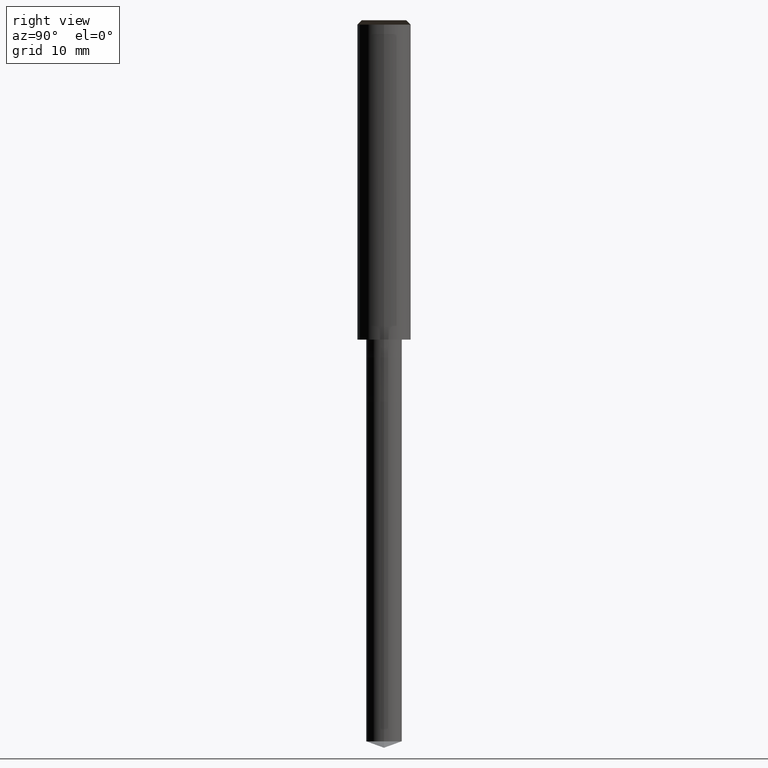
[diagram: clean part render]
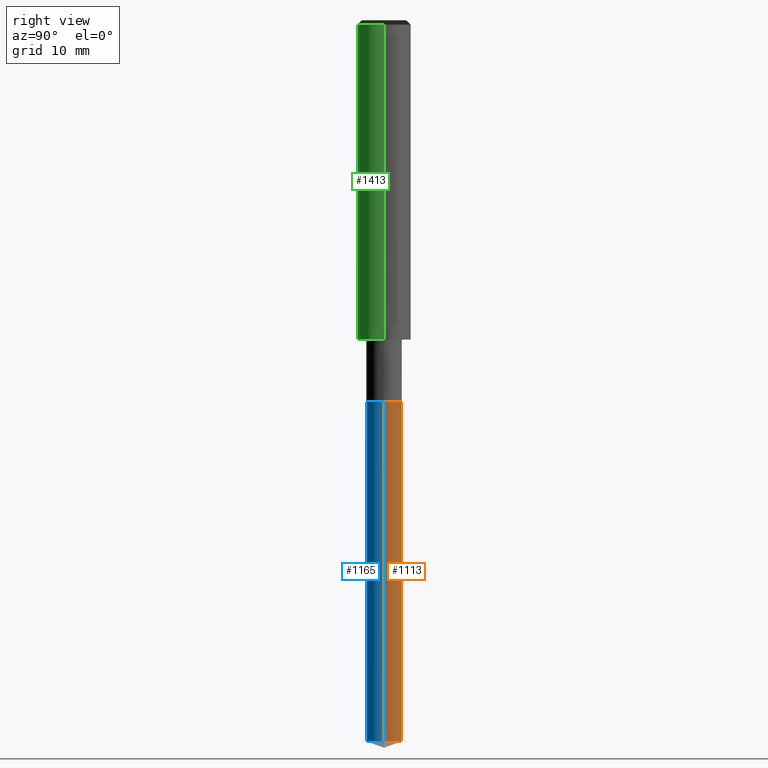
[diagram: same view with three faces highlighted in distinct colors, each labeled with its STEP entity id]
A machine part, right view with three faces highlighted in distinct colors.
Their STEP definitions:

[orange] entity #1113 — the highlighted face is a freeform B-spline surface patch.
#1015=CARTESIAN_POINT('',(2.0,0.0,-45.272059531468));
#1016=CARTESIAN_POINT('',(2.0,2.0,-45.272059531468));
#1017=CARTESIAN_POINT('',(0.0,2.0,-45.272059531468));
#1018=CARTESIAN_POINT('',(-2.0,2.0,-45.272059531468));
#1019=CARTESIAN_POINT('',(-2.0,0.0,-45.272059531468));
#1020=CARTESIAN_POINT('',(2.0,0.0,-7.0));
#1021=CARTESIAN_POINT('',(2.0,2.0,-7.0));
#1022=CARTESIAN_POINT('',(0.0,2.0,-7.0));
#1023=CARTESIAN_POINT('',(-2.0,2.0,-7.0));
#1024=CARTESIAN_POINT('',(-2.0,0.0,-7.0));
#1094=(
BOUNDED_SURFACE()
B_SPLINE_SURFACE(1,2,(
(#1015,#1016,#1017,#1018,#1019),
(#1020,#1021,#1022,#1023,#1024)
), .UNSPECIFIED.,.F.,.F.,.F.)
B_SPLINE_SURFACE_WITH_KNOTS((2,2),(3,2,3),(
0.0,1.0),(
0.0,0.5,1.0), .UNSPECIFIED.)
GEOMETRIC_REPRESENTATION_ITEM()
RATIONAL_B_SPLINE_SURFACE(((1.0,0.707106781187,1.0,0.707106781187,1.0),
(1.0,0.707106781187,1.0,0.707106781187,1.0)
))
REPRESENTATION_ITEM('')
SURFACE()
);
#1095=(
BOUNDED_CURVE()
B_SPLINE_CURVE(2,(#1019,#1018,#1017,#1016,#1015),.UNSPECIFIED.,.F.,.F.)
B_SPLINE_CURVE_WITH_KNOTS((3,2,3),
(0.0,0.5,1.0),.UNSPECIFIED.)
CURVE()
GEOMETRIC_REPRESENTATION_ITEM()
RATIONAL_B_SPLINE_CURVE((1.0,0.707106781187,1.0,0.707106781187,1.0))
REPRESENTATION_ITEM('')
);
#1096=(
BOUNDED_CURVE()
B_SPLINE_CURVE(1,(#1015,#1020),.UNSPECIFIED.,.F.,.F.)
B_SPLINE_CURVE_WITH_KNOTS((2,2),
(0.0,1.0),.UNSPECIFIED.)
CURVE()
GEOMETRIC_REPRESENTATION_ITEM()
RATIONAL_B_SPLINE_CURVE((1.0,1.0))
REPRESENTATION_ITEM('')
);
#1097=(
BOUNDED_CURVE()
B_SPLINE_CURVE(2,(#1020,#1021,#1022,#1023,#1024),.UNSPECIFIED.,.F.,.F.)
B_SPLINE_CURVE_WITH_KNOTS((3,2,3),
(0.0,0.5,1.0),.UNSPECIFIED.)
CURVE()
GEOMETRIC_REPRESENTATION_ITEM()
RATIONAL_B_SPLINE_CURVE((1.0,0.707106781187,1.0,0.707106781187,1.0))
REPRESENTATION_ITEM('')
);
#1098=(
BOUNDED_CURVE()
B_SPLINE_CURVE(1,(#1024,#1019),.UNSPECIFIED.,.F.,.F.)
B_SPLINE_CURVE_WITH_KNOTS((2,2),
(0.0,1.0),.UNSPECIFIED.)
CURVE()
GEOMETRIC_REPRESENTATION_ITEM()
RATIONAL_B_SPLINE_CURVE((1.0,1.0))
REPRESENTATION_ITEM('')
);
#1099=VERTEX_POINT('',#1015);
#1100=VERTEX_POINT('',#1019);
#1101=VERTEX_POINT('',#1020);
#1102=VERTEX_POINT('',#1024);
#1103=EDGE_CURVE('',#1100,#1099,#1095,.T.);
#1104=EDGE_CURVE('',#1099,#1101,#1096,.T.);
#1105=EDGE_CURVE('',#1101,#1102,#1097,.T.);
#1106=EDGE_CURVE('',#1102,#1100,#1098,.T.);
#1107=ORIENTED_EDGE('',*,*,#1103,.T.);
#1108=ORIENTED_EDGE('',*,*,#1104,.T.);
#1109=ORIENTED_EDGE('',*,*,#1105,.T.);
#1110=ORIENTED_EDGE('',*,*,#1106,.T.);
#1111=EDGE_LOOP('',(#1107,#1108,#1109,#1110));
#1112=FACE_OUTER_BOUND('',#1111,.T.);
#1113=ADVANCED_FACE('',(#1112),#1094,.T.);

[blue] entity #1165 — the highlighted face is a freeform B-spline surface patch.
#1015=CARTESIAN_POINT('',(2.0,0.0,-45.272059531468));
#1019=CARTESIAN_POINT('',(-2.0,0.0,-45.272059531468));
#1020=CARTESIAN_POINT('',(2.0,0.0,-7.0));
#1024=CARTESIAN_POINT('',(-2.0,0.0,-7.0));
#1026=CARTESIAN_POINT('',(-2.0,-2.0,-45.272059531468));
#1027=CARTESIAN_POINT('',(0.0,-2.0,-45.272059531468));
#1028=CARTESIAN_POINT('',(2.0,-2.0,-45.272059531468));
#1029=CARTESIAN_POINT('',(-2.0,-2.0,-7.0));
#1030=CARTESIAN_POINT('',(0.0,-2.0,-7.0));
#1031=CARTESIAN_POINT('',(2.0,-2.0,-7.0));
#1146=(
BOUNDED_SURFACE()
B_SPLINE_SURFACE(1,2,(
(#1019,#1026,#1027,#1028,#1015),
(#1024,#1029,#1030,#1031,#1020)
), .UNSPECIFIED.,.F.,.F.,.F.)
B_SPLINE_SURFACE_WITH_KNOTS((2,2),(3,2,3),(
0.0,1.0),(
0.0,0.5,1.0), .UNSPECIFIED.)
GEOMETRIC_REPRESENTATION_ITEM()
RATIONAL_B_SPLINE_SURFACE(((1.0,0.707106781187,1.0,0.707106781187,1.0),
(1.0,0.707106781187,1.0,0.707106781187,1.0)
))
REPRESENTATION_ITEM('')
SURFACE()
);
#1147=(
BOUNDED_CURVE()
B_SPLINE_CURVE(2,(#1015,#1028,#1027,#1026,#1019),.UNSPECIFIED.,.F.,.F.)
B_SPLINE_CURVE_WITH_KNOTS((3,2,3),
(0.0,0.5,1.0),.UNSPECIFIED.)
CURVE()
GEOMETRIC_REPRESENTATION_ITEM()
RATIONAL_B_SPLINE_CURVE((1.0,0.707106781187,1.0,0.707106781187,1.0))
REPRESENTATION_ITEM('')
);
#1148=(
BOUNDED_CURVE()
B_SPLINE_CURVE(1,(#1019,#1024),.UNSPECIFIED.,.F.,.F.)
B_SPLINE_CURVE_WITH_KNOTS((2,2),
(0.0,1.0),.UNSPECIFIED.)
CURVE()
GEOMETRIC_REPRESENTATION_ITEM()
RATIONAL_B_SPLINE_CURVE((1.0,1.0))
REPRESENTATION_ITEM('')
);
#1149=(
BOUNDED_CURVE()
B_SPLINE_CURVE(2,(#1024,#1029,#1030,#1031,#1020),.UNSPECIFIED.,.F.,.F.)
B_SPLINE_CURVE_WITH_KNOTS((3,2,3),
(0.0,0.5,1.0),.UNSPECIFIED.)
CURVE()
GEOMETRIC_REPRESENTATION_ITEM()
RATIONAL_B_SPLINE_CURVE((1.0,0.707106781187,1.0,0.707106781187,1.0))
REPRESENTATION_ITEM('')
);
#1150=(
BOUNDED_CURVE()
B_SPLINE_CURVE(1,(#1020,#1015),.UNSPECIFIED.,.F.,.F.)
B_SPLINE_CURVE_WITH_KNOTS((2,2),
(0.0,1.0),.UNSPECIFIED.)
CURVE()
GEOMETRIC_REPRESENTATION_ITEM()
RATIONAL_B_SPLINE_CURVE((1.0,1.0))
REPRESENTATION_ITEM('')
);
#1151=VERTEX_POINT('',#1015);
#1152=VERTEX_POINT('',#1019);
#1153=VERTEX_POINT('',#1020);
#1154=VERTEX_POINT('',#1024);
#1155=EDGE_CURVE('',#1151,#1152,#1147,.T.);
#1156=EDGE_CURVE('',#1152,#1154,#1148,.T.);
#1157=EDGE_CURVE('',#1154,#1153,#1149,.T.);
#1158=EDGE_CURVE('',#1153,#1151,#1150,.T.);
#1159=ORIENTED_EDGE('',*,*,#1155,.T.);
#1160=ORIENTED_EDGE('',*,*,#1156,.T.);
#1161=ORIENTED_EDGE('',*,*,#1157,.T.);
#1162=ORIENTED_EDGE('',*,*,#1158,.T.);
#1163=EDGE_LOOP('',(#1159,#1160,#1161,#1162));
#1164=FACE_OUTER_BOUND('',#1163,.T.);
#1165=ADVANCED_FACE('',(#1164),#1146,.T.);

[green] entity #1413 — the highlighted face is a freeform B-spline surface patch.
#1042=CARTESIAN_POINT('',(3.0,0.0,0.0));
#1046=CARTESIAN_POINT('',(-3.0,0.0,0.0));
#1047=CARTESIAN_POINT('',(3.0,0.0,35.5));
#1051=CARTESIAN_POINT('',(-3.0,0.0,35.5));
#1064=CARTESIAN_POINT('',(-3.0,-3.0,0.0));
#1065=CARTESIAN_POINT('',(0.0,-3.0,0.0));
#1066=CARTESIAN_POINT('',(3.0,-3.0,0.0));
#1067=CARTESIAN_POINT('',(-3.0,-3.0,35.5));
#1068=CARTESIAN_POINT('',(0.0,-3.0,35.5));
#1069=CARTESIAN_POINT('',(3.0,-3.0,35.5));
#1394=(
BOUNDED_SURFACE()
B_SPLINE_SURFACE(1,2,(
(#1046,#1064,#1065,#1066,#1042),
(#1051,#1067,#1068,#1069,#1047)
), .UNSPECIFIED.,.F.,.F.,.F.)
B_SPLINE_SURFACE_WITH_KNOTS((2,2),(3,2,3),(
0.0,1.0),(
0.0,0.5,1.0), .UNSPECIFIED.)
GEOMETRIC_REPRESENTATION_ITEM()
RATIONAL_B_SPLINE_SURFACE(((1.0,0.707106781187,1.0,0.707106781187,1.0),
(1.0,0.707106781187,1.0,0.707106781187,1.0)
))
REPRESENTATION_ITEM('')
SURFACE()
);
#1395=(
BOUNDED_CURVE()
B_SPLINE_CURVE(2,(#1042,#1066,#1065,#1064,#1046),.UNSPECIFIED.,.F.,.F.)
B_SPLINE_CURVE_WITH_KNOTS((3,2,3),
(0.0,0.5,1.0),.UNSPECIFIED.)
CURVE()
GEOMETRIC_REPRESENTATION_ITEM()
RATIONAL_B_SPLINE_CURVE((1.0,0.707106781187,1.0,0.707106781187,1.0))
REPRESENTATION_ITEM('')
);
#1396=(
BOUNDED_CURVE()
B_SPLINE_CURVE(1,(#1046,#1051),.UNSPECIFIED.,.F.,.F.)
B_SPLINE_CURVE_WITH_KNOTS((2,2),
(0.0,1.0),.UNSPECIFIED.)
CURVE()
GEOMETRIC_REPRESENTATION_ITEM()
RATIONAL_B_SPLINE_CURVE((1.0,1.0))
REPRESENTATION_ITEM('')
);
#1397=(
BOUNDED_CURVE()
B_SPLINE_CURVE(2,(#1051,#1067,#1068,#1069,#1047),.UNSPECIFIED.,.F.,.F.)
B_SPLINE_CURVE_WITH_KNOTS((3,2,3),
(0.0,0.5,1.0),.UNSPECIFIED.)
CURVE()
GEOMETRIC_REPRESENTATION_ITEM()
RATIONAL_B_SPLINE_CURVE((1.0,0.707106781187,1.0,0.707106781187,1.0))
REPRESENTATION_ITEM('')
);
#1398=(
BOUNDED_CURVE()
B_SPLINE_CURVE(1,(#1047,#1042),.UNSPECIFIED.,.F.,.F.)
B_SPLINE_CURVE_WITH_KNOTS((2,2),
(0.0,1.0),.UNSPECIFIED.)
CURVE()
GEOMETRIC_REPRESENTATION_ITEM()
RATIONAL_B_SPLINE_CURVE((1.0,1.0))
REPRESENTATION_ITEM('')
);
#1399=VERTEX_POINT('',#1042);
#1400=VERTEX_POINT('',#1046);
#1401=VERTEX_POINT('',#1047);
#1402=VERTEX_POINT('',#1051);
#1403=EDGE_CURVE('',#1399,#1400,#1395,.T.);
#1404=EDGE_CURVE('',#1400,#1402,#1396,.T.);
#1405=EDGE_CURVE('',#1402,#1401,#1397,.T.);
#1406=EDGE_CURVE('',#1401,#1399,#1398,.T.);
#1407=ORIENTED_EDGE('',*,*,#1403,.T.);
#1408=ORIENTED_EDGE('',*,*,#1404,.T.);
#1409=ORIENTED_EDGE('',*,*,#1405,.T.);
#1410=ORIENTED_EDGE('',*,*,#1406,.T.);
#1411=EDGE_LOOP('',(#1407,#1408,#1409,#1410));
#1412=FACE_OUTER_BOUND('',#1411,.T.);
#1413=ADVANCED_FACE('',(#1412),#1394,.T.);